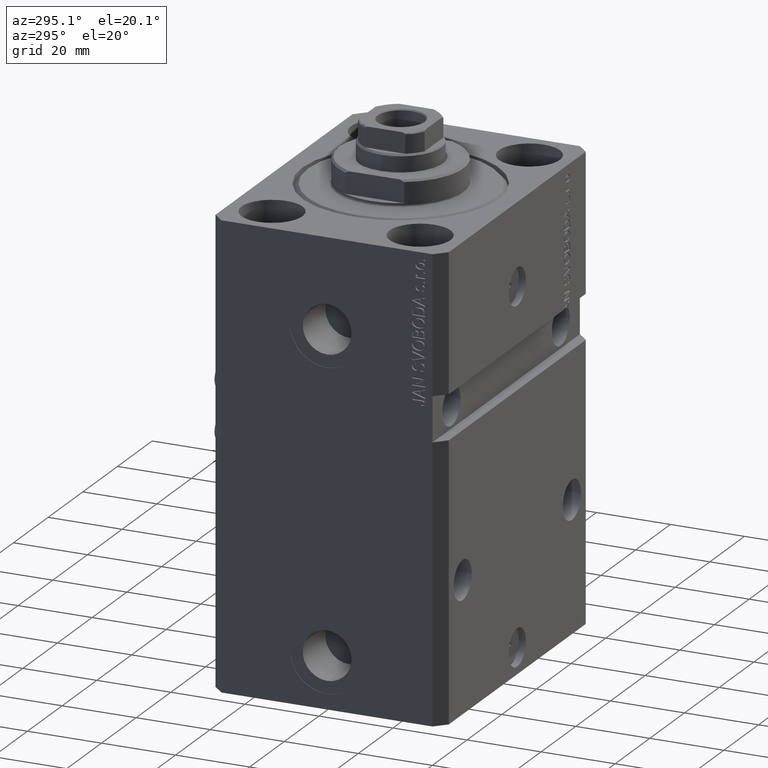
[diagram: clean part render]
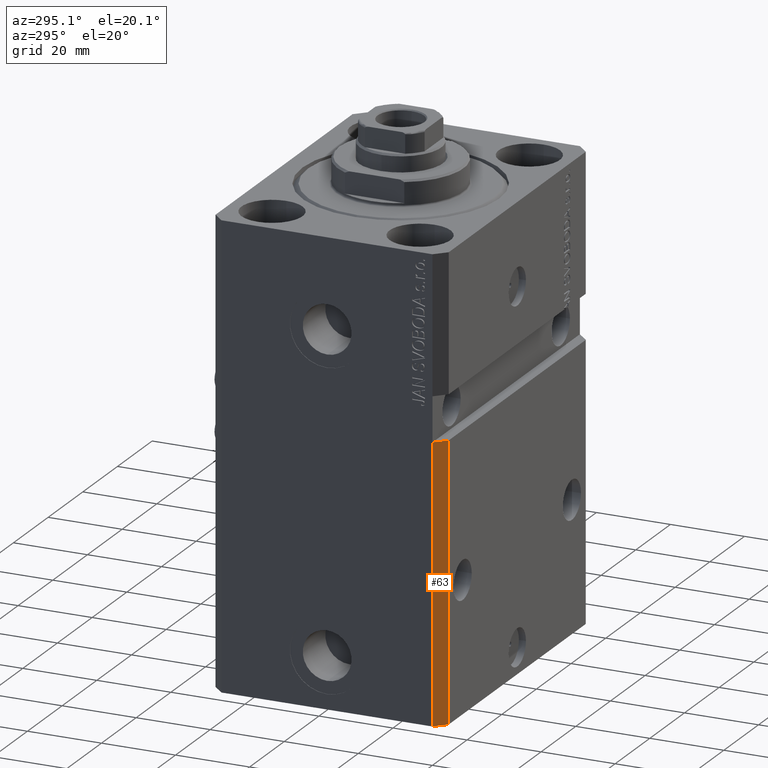
[diagram: same view with one face highlighted and labeled with its STEP entity id]
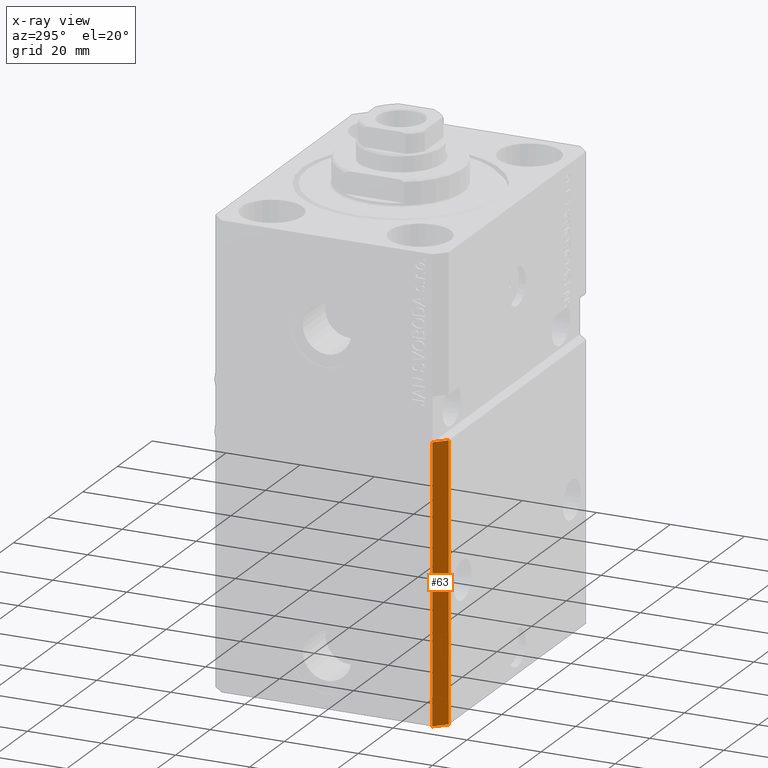
[diagram: x-ray of the same camera — body ghosted, the highlighted face saturated]
A machine part, auxiliary view. The second image highlights one B-rep face of the part: STEP entity #63.
The next image is the same camera in x-ray: the body ghosted, the highlighted face saturated — about 0% of this face is hidden behind the body in this view.
In plain terms, the highlighted planar face has unit normal (-0.7071, -0.7071, 0).
Its self-contained STEP definition (entity closure, byte-faithful):
#13 = CARTESIAN_POINT ( 'NONE',  ( -42.50000000000000000, -28.50000000000000711, -48.99999999999999289 ) ) ;
#63 = ADVANCED_FACE ( 'NONE', ( #45648 ), #1116, .T. ) ;
#877 = LINE ( 'NONE', #7793, #44413 ) ;
#1116 = PLANE ( 'NONE',  #13341 ) ;
#1800 = LINE ( 'NONE', #44030, #45589 ) ;
#3699 = EDGE_CURVE ( 'NONE', #12850, #46586, #21127, .T. ) ;
#5488 = DIRECTION ( 'NONE',  ( 0.7071067811865472397, -0.7071067811865479058, 1.154479749032186513E-16 ) ) ;
#6611 = EDGE_LOOP ( 'NONE', ( #20424, #38657, #18756, #7221 ) ) ;
#7221 = ORIENTED_EDGE ( 'NONE', *, *, #3699, .T. ) ;
#7793 = CARTESIAN_POINT ( 'NONE',  ( -42.50000000000000000, -28.50000000000000000, -123.0000000000000000 ) ) ;
#10042 = CARTESIAN_POINT ( 'NONE',  ( -39.50000000000000711, -31.50000000000000000, -123.0000000000000000 ) ) ;
#11980 = DIRECTION ( 'NONE',  ( 0.000000000000000000, 0.000000000000000000, 1.000000000000000000 ) ) ;
#12850 = VERTEX_POINT ( 'NONE', #24681 ) ;
#13341 = AXIS2_PLACEMENT_3D ( 'NONE', #19367, #46129, #30917 ) ;
#14922 = VERTEX_POINT ( 'NONE', #21940 ) ;
#16321 = EDGE_CURVE ( 'NONE', #14922, #12850, #40561, .T. ) ;
#18756 = ORIENTED_EDGE ( 'NONE', *, *, #16321, .T. ) ;
#19367 = CARTESIAN_POINT ( 'NONE',  ( -42.50000000000000000, -28.50000000000000000, -123.0000000000000000 ) ) ;
#20424 = ORIENTED_EDGE ( 'NONE', *, *, #34467, .F. ) ;
#20639 = EDGE_CURVE ( 'NONE', #14922, #30456, #877, .T. ) ;
#21127 = LINE ( 'NONE', #10042, #38552 ) ;
#21940 = CARTESIAN_POINT ( 'NONE',  ( -42.50000000000000000, -28.50000000000000000, -123.0000000000000000 ) ) ;
#23429 = CARTESIAN_POINT ( 'NONE',  ( -39.50000000000000000, -31.50000000000000711, -48.99999999999999289 ) ) ;
#24681 = CARTESIAN_POINT ( 'NONE',  ( -39.50000000000000711, -31.50000000000000000, -123.0000000000000000 ) ) ;
#26062 = CARTESIAN_POINT ( 'NONE',  ( -42.50000000000000000, -28.50000000000000000, -123.0000000000000000 ) ) ;
#26302 = DIRECTION ( 'NONE',  ( 0.7071067811865471286, -0.7071067811865479058, 0.000000000000000000 ) ) ;
#30456 = VERTEX_POINT ( 'NONE', #13 ) ;
#30917 = DIRECTION ( 'NONE',  ( 0.7071067811865472397, -0.7071067811865479058, 0.000000000000000000 ) ) ;
#34467 = EDGE_CURVE ( 'NONE', #30456, #46586, #1800, .T. ) ;
#37329 = DIRECTION ( 'NONE',  ( 0.000000000000000000, 0.000000000000000000, 1.000000000000000000 ) ) ;
#38552 = VECTOR ( 'NONE', #37329, 1000.000000000000000 ) ;
#38657 = ORIENTED_EDGE ( 'NONE', *, *, #20639, .F. ) ;
#40561 = LINE ( 'NONE', #26062, #43573 ) ;
#43573 = VECTOR ( 'NONE', #26302, 1000.000000000000000 ) ;
#44030 = CARTESIAN_POINT ( 'NONE',  ( -42.50000000000000711, -28.49999999999999289, -48.99999999999998579 ) ) ;
#44413 = VECTOR ( 'NONE', #11980, 1000.000000000000000 ) ;
#45589 = VECTOR ( 'NONE', #5488, 1000.000000000000000 ) ;
#45648 = FACE_OUTER_BOUND ( 'NONE', #6611, .T. ) ;
#46129 = DIRECTION ( 'NONE',  ( -0.7071067811865479058, -0.7071067811865472397, 0.000000000000000000 ) ) ;
#46586 = VERTEX_POINT ( 'NONE', #23429 ) ;